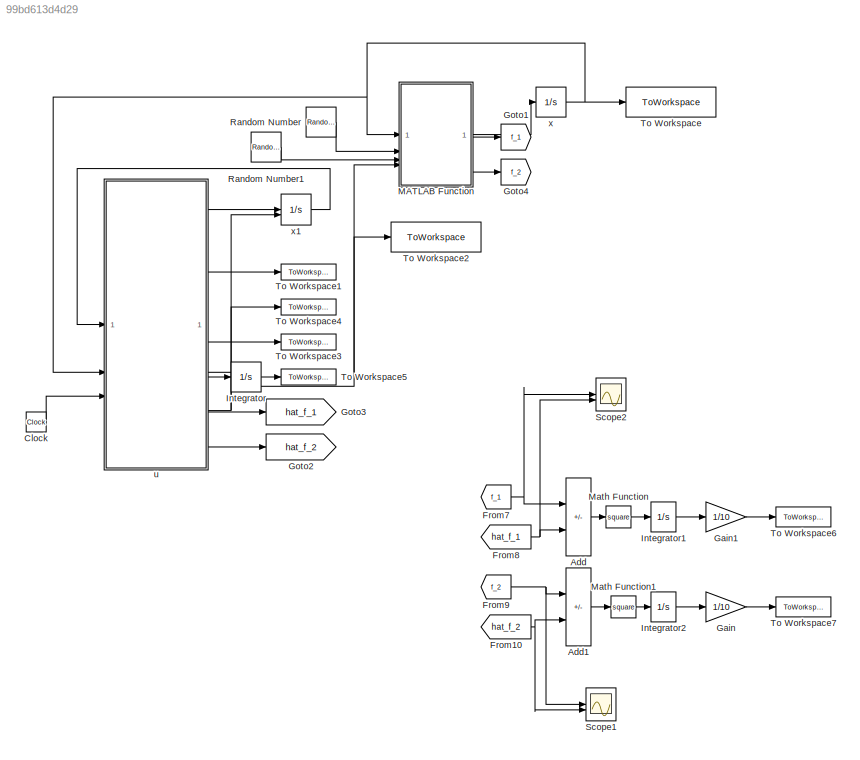
MODEL slx_99bd613d4d29
KIND model
CONFIG AbsTol = auto
CONFIG EnableMultiTasking = off
CONFIG FixedStep = Step_T
CONFIG MaxStep = auto
CONFIG MinStep = auto
CONFIG RelTol = 1e-3
CONFIG SampleTimeConstraint = Unconstrained
CONFIG SolverName = FixedStepAuto
CONFIG StartTime = 0.0
CONFIG StopTime = 10
BLOCK [Sum] Add
  IconShape = rectangular
  Inputs = +-
BLOCK [Sum] Add1
  IconShape = rectangular
  Inputs = +-
BLOCK [Clock] Clock
BLOCK [From] From10
  GotoTag = hat_f_2
  NameLocation = top
BLOCK [From] From7
  GotoTag = f_1
  NameLocation = top
BLOCK [From] From8
  GotoTag = hat_f_1
  NameLocation = top
BLOCK [From] From9
  GotoTag = f_2
  NameLocation = top
BLOCK [Gain] Gain
  Gain = 1/10
BLOCK [Gain] Gain1
  Gain = 1/10
BLOCK [Goto] Goto1
  GotoTag = f_1
BLOCK [Goto] Goto2
  GotoTag = hat_f_2
BLOCK [Goto] Goto3
  GotoTag = hat_f_1
BLOCK [Goto] Goto4
  GotoTag = f_2
BLOCK [Integrator] Integrator
BLOCK [Integrator] Integrator1
BLOCK [Integrator] Integrator2
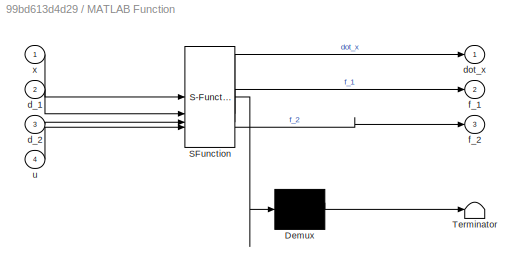
BLOCK [SubSystem] MATLAB Function
  ErrorFcn = Stateflow.Translate.translate
  PermitHierarchicalResolution = ExplicitOnly
  SFBlockType = MATLAB Function
  TreatAsAtomicUnit = on
BLOCK [Demux] MATLAB Function/ Demux 
  Outputs = 1
BLOCK [S-Function] MATLAB Function/ SFunction 
  EnableBusSupport = on
  FunctionName = sf_sfun
  Parameters = pam
  PortCounts = [4 4]
  SFcnIsStateOwnerBlock = off
  SFunctionDeploymentMode = off
  Tag = Stateflow S-Function 2
BLOCK [Terminator] MATLAB Function/ Terminator 
BLOCK [Inport] MATLAB Function/d_1
  Port = 2
BLOCK [Inport] MATLAB Function/d_2
  Port = 3
BLOCK [Outport] MATLAB Function/dot_x
BLOCK [Outport] MATLAB Function/f_1
  Port = 2
BLOCK [Outport] MATLAB Function/f_2
  Port = 3
BLOCK [Inport] MATLAB Function/u
  Port = 4
BLOCK [Inport] MATLAB Function/x
BLOCK [Math] Math Function
  Operator = square
BLOCK [Math] Math Function1
  Operator = square
BLOCK [RandomNumber] Random Number
  SampleTime = Step_T
  Seed = -seed
  Variance = pam.d*pam.d
BLOCK [RandomNumber] Random Number1
  SampleTime = Step_T
  Seed = seed
  Variance = pam.d*pam.d
BLOCK [Scope] Scope1
  Floating = off
  NumInputPorts = 2
  ScopeSpecificationString = Simulink.scopes.TimeScopeBlockCfg('CurrentConfiguration', extmgr.ConfigurationSet(extmgr.Configuration('Core','General UI',true),extmgr.Configuration('Core','Source UI',true),extmgr.Configuration('Sources','WiredSimulink',true,'DataLoggingVariableName','ScopeData1'),extmgr.Configuration('Visuals','Time Domain',true,'SerializedDisplays',{struct('MinYLimReal','-0.78148','MaxYLimReal','7.04175','YLab...<+1444ch>
BLOCK [Scope] Scope2
  Floating = off
  NumInputPorts = 2
  ScopeSpecificationString = Simulink.scopes.TimeScopeBlockCfg('CurrentConfiguration', extmgr.ConfigurationSet(extmgr.Configuration('Core','General UI',true),extmgr.Configuration('Core','Source UI',true),extmgr.Configuration('Sources','WiredSimulink',true,'DataLoggingVariableName','ScopeData2'),extmgr.Configuration('Visuals','Time Domain',true,'SerializedDisplays',{struct('MinYLimReal','-0.80797','MaxYLimReal','1.19928','YLab...<+1444ch>
BLOCK [ToWorkspace] To Workspace
  FixptAsFi = on
  MaxDataPoints = inf
  SampleTime = -1
  SaveFormat = Timeseries
  VariableName = x
BLOCK [ToWorkspace] To Workspace1
  FixptAsFi = on
  MaxDataPoints = inf
  SampleTime = -1
  SaveFormat = Timeseries
  VariableName = e_alpha_1
BLOCK [ToWorkspace] To Workspace2
  FixptAsFi = on
  MaxDataPoints = inf
  SampleTime = -1
  SaveFormat = Timeseries
  VariableName = u
BLOCK [ToWorkspace] To Workspace3
  FixptAsFi = on
  MaxDataPoints = inf
  SampleTime = -1
  SaveFormat = Timeseries
  VariableName = y_d
BLOCK [ToWorkspace] To Workspace4
  FixptAsFi = on
  MaxDataPoints = inf
  SampleTime = -1
  SaveFormat = Timeseries
  VariableName = alpha_1
BLOCK [ToWorkspace] To Workspace5
  FixptAsFi = on
  MaxDataPoints = inf
  SampleTime = -1
  SaveFormat = Timeseries
  VariableName = V
BLOCK [ToWorkspace] To Workspace6
  FixptAsFi = on
  MaxDataPoints = inf
  SampleTime = -1
  SaveFormat = Timeseries
  VariableName = error_1
BLOCK [ToWorkspace] To Workspace7
  FixptAsFi = on
  MaxDataPoints = inf
  SampleTime = -1
  SaveFormat = Timeseries
  VariableName = error_2
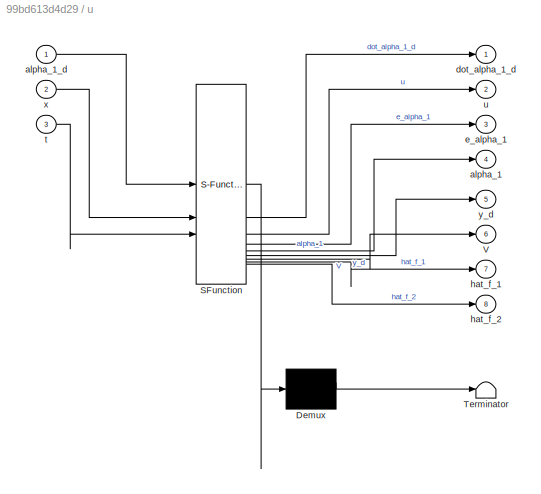
BLOCK [SubSystem] u
  ErrorFcn = Stateflow.Translate.translate
  PermitHierarchicalResolution = ExplicitOnly
  SFBlockType = MATLAB Function
  TreatAsAtomicUnit = on
BLOCK [Demux] u/ Demux 
  Outputs = 1
BLOCK [S-Function] u/ SFunction 
  EnableBusSupport = on
  FunctionName = sf_sfun
  Parameters = pam
  PortCounts = [3 9]
  SFcnIsStateOwnerBlock = off
  SFunctionDeploymentMode = off
  Tag = Stateflow S-Function 1
BLOCK [Terminator] u/ Terminator 
BLOCK [Outport] u/V
  Port = 6
BLOCK [Outport] u/alpha_1
  Port = 4
BLOCK [Inport] u/alpha_1_d
BLOCK [Outport] u/dot_alpha_1_d
BLOCK [Outport] u/e_alpha_1
  Port = 3
BLOCK [Outport] u/hat_f_1
  Port = 7
BLOCK [Outport] u/hat_f_2
  Port = 8
BLOCK [Inport] u/t
  Port = 3
BLOCK [Outport] u/u
  Port = 2
BLOCK [Inport] u/x
  Port = 2
BLOCK [Outport] u/y_d
  Port = 5
BLOCK [Integrator] x
  InitialCondition = [x_1_0;x_2_0]
BLOCK [Integrator] x1
  InitialCondition = alpha_1_d_0
  InitialConditionSource = external
LINE Add1:1 -> Math Function1:1
LINE Add:1 -> Math Function:1
LINE Clock:1 -> u:3
NET From10:1 -> Add1:2, Scope1:2
NET From7:1 -> Add:1, Scope2:1
NET From8:1 -> Add:2, Scope2:2
NET From9:1 -> Add1:1, Scope1:1
LINE Gain1:1 -> To Workspace6:1
LINE Gain:1 -> To Workspace7:1
LINE Integrator1:1 -> Gain1:1
LINE Integrator2:1 -> Gain:1
LINE Integrator:1 -> To Workspace5:1
LINE MATLAB Function:1 -> x:1
LINE MATLAB Function:2 -> Goto1:1
LINE MATLAB Function:3 -> Goto4:1
LINE Math Function1:1 -> Integrator2:1
LINE Math Function:1 -> Integrator1:1
LINE Random Number1:1 -> MATLAB Function:3
LINE Random Number:1 -> MATLAB Function:2
LINE u:1 -> x1:1
NET u:2 -> MATLAB Function:4, To Workspace2:1
LINE u:3 -> To Workspace1:1
NET u:4 -> To Workspace4:1, x1:2
LINE u:5 -> To Workspace3:1
LINE u:6 -> Integrator:1
LINE u:7 -> Goto3:1
LINE u:8 -> Goto2:1
LINE x1:1 -> u:1
NET x:1 -> MATLAB Function:1, To Workspace:1, u:2
note: NET lines group one-source signal fan-out (src -> all destinations, sorted); 1:1 wires keep LINE
CHART u states=1 transitions=1
  STATE_LABEL 'eML_blk_kernel()'
  STATE_LABEL "SCRIPT:\nfunction [dot_alpha_1_d,u,e_alpha_1,alpha_1,y_d,V,hat_f_1,hat_f_2]  = fcn(alpha_1_d,x,t,pam)\n\ny_d = 0;\ndot_y_d = 0;\n\nx_1 = x(1);\nx_2 = x(2);\n\nz_1 = [x_1;cos(x_1)];\nz_2 = [x_1;x_2;sin(x_1)*cos(x_2)];\n\n%% 第一阶\ne_1 = x_1 - y_d;\nalpha_1 = -pam.lambda_1*e_1-pam.hat_theta_1'*z_1+dot_y_d;\n\n%% 第二阶\ne_2 = x_2 - alpha_1;\ndot_alpha_1_d = -(1/pam.omega_1)*(alpha_1_d-alpha_1);\nu = -pam.lambda_2*e_2-pam.h...<+138ch>"
CHART MATLAB Function states=1 transitions=1
  STATE_LABEL 'eML_blk_kernel()'
  STATE_LABEL 'SCRIPT:\nfunction [dot_x,f_1,f_2]  = fcn(x,d_1,d_2,u,pam)\n\nx_1 = x(1);\nx_2 = x(2);\n\ndot_x_1 = x_2-(1/pam.beta_1-pam.rho_1+sqrt(2))*x_1+cos(x_1)+d_1;\ndot_x_2 = u+sqrt(5)*x_1-(1/pam.beta_2-pam.rho_2)*x_2+sqrt(2)*sin(x_1)*cos(x_2)+d_2;\n\ndot_x = [dot_x_1;dot_x_2];\nf_1 = -(1/pam.beta_1-pam.rho_1+sqrt(2))*x_1+cos(x_1);\nf_2 = sqrt(5)*x_1-(1/pam.beta_2-pam.rho_2)*x_2+sqrt(2)*sin(x_1)*cos(x_2);'
CHART  states=0 transitions=0
CHART  states=0 transitions=0
